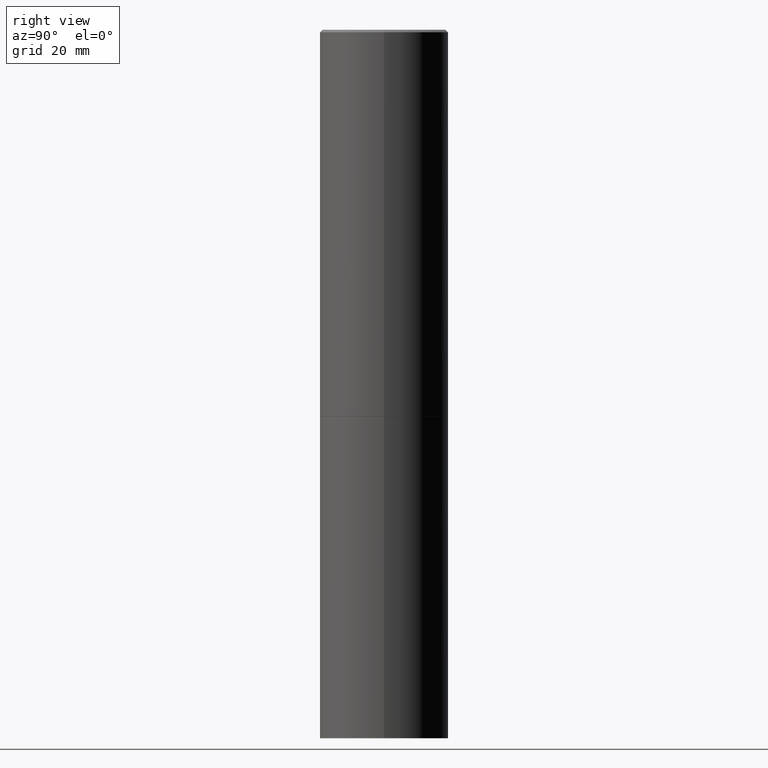
[diagram: clean part render]
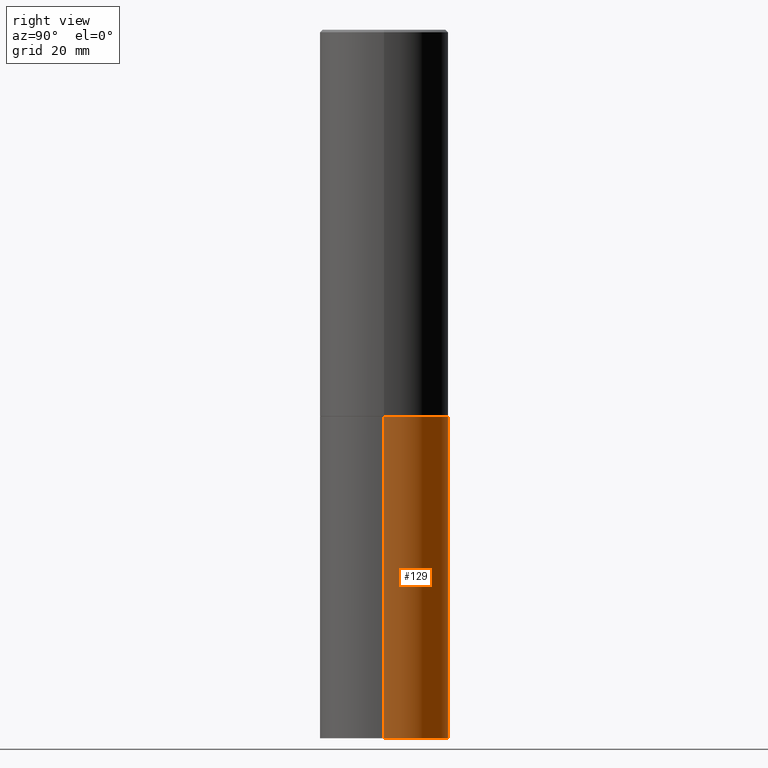
[diagram: same view with one face highlighted and labeled with its STEP entity id]
A machine part, right view. The second image highlights one B-rep face of the part: STEP entity #129.
In plain terms, the highlighted cylindrical surface (partial cylindrical patch) has radius 12.7 mm, axis along (-0, 0, 1).
Its self-contained STEP definition (entity closure, byte-faithful):
#12 = EDGE_LOOP ( 'NONE', ( #42, #360, #15, #45 ) ) ;
#14 = AXIS2_PLACEMENT_3D ( 'NONE', #197, #318, #262 ) ;
#15 = ORIENTED_EDGE ( 'NONE', *, *, #229, .F. ) ;
#24 = EDGE_CURVE ( 'NONE', #159, #62, #134, .T. ) ;
#36 = VERTEX_POINT ( 'NONE', #47 ) ;
#38 = CARTESIAN_POINT ( 'NONE',  ( 1.345007843401824904E-28, -1.920314736363729972E-14, -5.500000000000000000 ) ) ;
#42 = ORIENTED_EDGE ( 'NONE', *, *, #259, .T. ) ;
#43 = DIRECTION ( 'NONE',  ( -2.445468806185136877E-29, 3.491481338843145188E-15, 1.000000000000000000 ) ) ;
#45 = ORIENTED_EDGE ( 'NONE', *, *, #322, .F. ) ;
#47 = CARTESIAN_POINT ( 'NONE',  ( 0.5000000000000000000, -1.396592535537256813E-14, -2.999999999999999556 ) ) ;
#51 = VERTEX_POINT ( 'NONE', #238 ) ;
#59 = CYLINDRICAL_SURFACE ( 'NONE', #14, 0.5000000000000000000 ) ;
#62 = VERTEX_POINT ( 'NONE', #142 ) ;
#129 = ADVANCED_FACE ( 'NONE', ( #342 ), #59, .T. ) ;
#134 = LINE ( 'NONE', #242, #362 ) ;
#142 = CARTESIAN_POINT ( 'NONE',  ( -0.5000000000000000000, -1.128608201128286632E-14, -2.999999999999999556 ) ) ;
#159 = VERTEX_POINT ( 'NONE', #232 ) ;
#165 = DIRECTION ( 'NONE',  ( -2.445468806185136597E-29, 3.491481338843145583E-15, 1.000000000000000000 ) ) ;
#177 = LINE ( 'NONE', #287, #352 ) ;
#187 = AXIS2_PLACEMENT_3D ( 'NONE', #38, #321, #327 ) ;
#191 = CARTESIAN_POINT ( 'NONE',  ( 7.336406418555408669E-29, -1.047444401652943478E-14, -2.999999999999999556 ) ) ;
#197 = CARTESIAN_POINT ( 'NONE',  ( 0.000000000000000000, 0.000000000000000000, 0.000000000000000000 ) ) ;
#206 = CIRCLE ( 'NONE', #187, 0.5000000000000000000 ) ;
#229 = EDGE_CURVE ( 'NONE', #36, #62, #266, .T. ) ;
#232 = CARTESIAN_POINT ( 'NONE',  ( -0.5000000000000000000, -1.128608201128286632E-14, -5.500000000000000000 ) ) ;
#238 = CARTESIAN_POINT ( 'NONE',  ( 0.5000000000000000000, -2.269462870248043307E-14, -5.500000000000000000 ) ) ;
#242 = CARTESIAN_POINT ( 'NONE',  ( -0.5000000000000000000, 3.552713678800500929E-15, -2.459467545127452891E-29 ) ) ;
#259 = EDGE_CURVE ( 'NONE', #51, #159, #206, .T. ) ;
#260 = AXIS2_PLACEMENT_3D ( 'NONE', #191, #165, #277 ) ;
#262 = DIRECTION ( 'NONE',  ( 1.000000000000000000, -6.982962677686266711E-15, 4.876176775795935793E-29 ) ) ;
#266 = CIRCLE ( 'NONE', #260, 0.5000000000000000000 ) ;
#277 = DIRECTION ( 'NONE',  ( 1.000000000000000000, -6.982962677686266711E-15, 0.000000000000000000 ) ) ;
#287 = CARTESIAN_POINT ( 'NONE',  ( 0.5000000000000000000, -3.491481338843133355E-15, 2.438088387897967896E-29 ) ) ;
#318 = DIRECTION ( 'NONE',  ( -2.445468806185136597E-29, 3.491481338843145583E-15, 1.000000000000000000 ) ) ;
#321 = DIRECTION ( 'NONE',  ( -2.445468806185136597E-29, 3.491481338843145583E-15, 1.000000000000000000 ) ) ;
#322 = EDGE_CURVE ( 'NONE', #51, #36, #177, .T. ) ;
#327 = DIRECTION ( 'NONE',  ( 1.000000000000000000, -6.982962677686262766E-15, 0.000000000000000000 ) ) ;
#342 = FACE_OUTER_BOUND ( 'NONE', #12, .T. ) ;
#352 = VECTOR ( 'NONE', #353, 39.37007874015748143 ) ;
#353 = DIRECTION ( 'NONE',  ( -2.445468806185136877E-29, 3.491481338843145188E-15, 1.000000000000000000 ) ) ;
#360 = ORIENTED_EDGE ( 'NONE', *, *, #24, .T. ) ;
#362 = VECTOR ( 'NONE', #43, 39.37007874015748143 ) ;